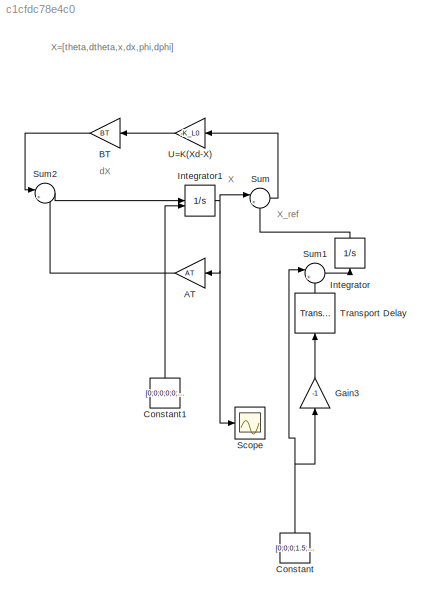
MODEL slx_c1cfdc78e4c0
KIND model
CONFIG AbsTol = auto
CONFIG EnableMultiTasking = off
CONFIG FixedStep = auto
CONFIG MaxStep = auto
CONFIG MinStep = auto
CONFIG RelTol = 1e-3
CONFIG SampleTimeConstraint = Unconstrained
CONFIG SolverName = VariableStepAuto
CONFIG StartTime = 0.0
CONFIG StopTime = 12
BLOCK [Gain] AT
  Gain = AT
  Multiplication = Matrix(K*u) (u vector)
  NameLocation = top
BLOCK [Gain] BT
  Gain = BT
  Multiplication = Matrix(K*u) (u vector)
  NameLocation = top
BLOCK [Constant] Constant
  NameLocation = right
  SampleTime = 3
  Value = [0;0;0;1.5;0;0]
  VectorParams1D = off
BLOCK [Constant] Constant1
  NameLocation = right
  Value = [0;0;0;0;0;0]
  VectorParams1D = off
BLOCK [Gain] Gain3
  Gain = -1
  NameLocation = right
BLOCK [Integrator] Integrator
  NameLocation = right
BLOCK [Integrator] Integrator1
  InitialCondition = [0;0;0;0;0;0]
  InitialConditionSource = external
BLOCK [Scope] Scope
  Floating = off
  NumInputPorts = 1
  ScopeSpecificationString = Simulink.scopes.TimeScopeBlockCfg('CurrentConfiguration', extmgr.ConfigurationSet(extmgr.Configuration('Core','General UI',true),extmgr.Configuration('Core','Source UI',true),extmgr.Configuration('Sources','WiredSimulink',true),extmgr.Configuration('Visuals','Time Domain',true,'SerializedDisplays',{struct('MinYLimReal','-2.00000','MaxYLimReal','2.00000','YLabelReal','','MinYLimMag','0.00000','MaxY...<+1518ch>
BLOCK [Sum] Sum
  Inputs = |+-
BLOCK [Sum] Sum1
  Inputs = |++
BLOCK [Sum] Sum2
  Inputs = |++
BLOCK [TransportDelay] Transport Delay
  DelayTime = 6
  NameLocation = right
BLOCK [Gain] U=K(Xd-X)
  Gain = -K_L0
  Multiplication = Matrix(K*u) (u vector)
  NameLocation = top
ANNOTATION (root): X
ANNOTATION (root): X=[theta,dtheta,x,dx,phi,dphi]
ANNOTATION (root): X_ref
ANNOTATION (root): dX
LINE AT:1 -> Sum2:2
LINE BT:1 -> Sum2:1
LINE Constant1:1 -> Integrator1:2
NET Constant:1 -> Gain3:1, Sum1:1
LINE Gain3:1 -> Transport Delay:1
NET Integrator1:1 -> AT:1, Scope:1, Sum:1
LINE Integrator:1 -> Sum:2
LINE Sum1:1 -> Integrator:1
LINE Sum2:1 -> Integrator1:1
LINE Sum:1 -> U=K(Xd-X):1
LINE Transport Delay:1 -> Sum1:2
LINE U=K(Xd-X):1 -> BT:1
note: NET lines group one-source signal fan-out (src -> all destinations, sorted); 1:1 wires keep LINE
